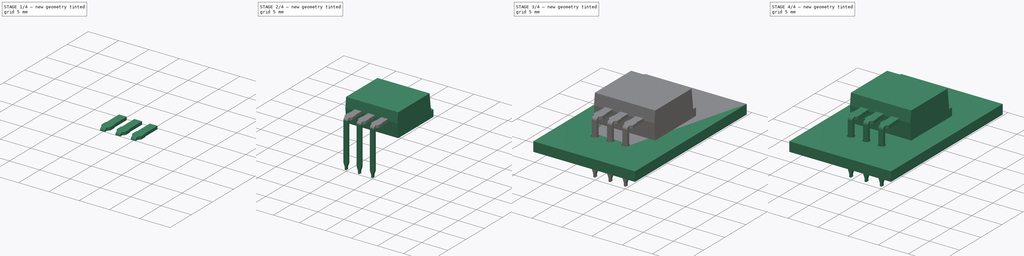
[diagram: build sequence overview — one tinted view per stage of 4, left to right]
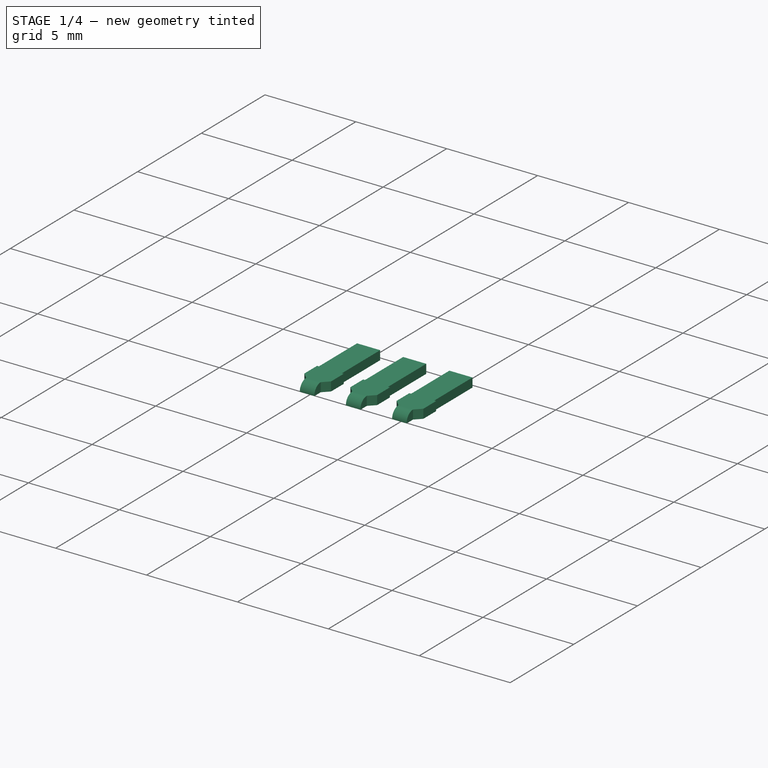
[diagram: stage 1 of 4 — iso view after this stage's code; geometry added in this stage tinted green]
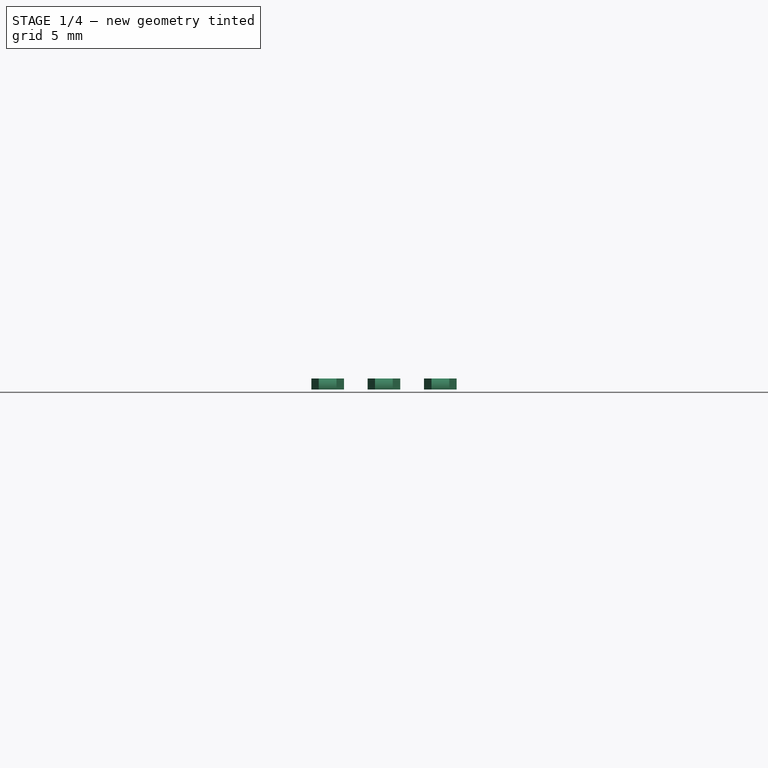
[diagram: stage 1 of 4 — front view after this stage's code; geometry added in this stage tinted green]
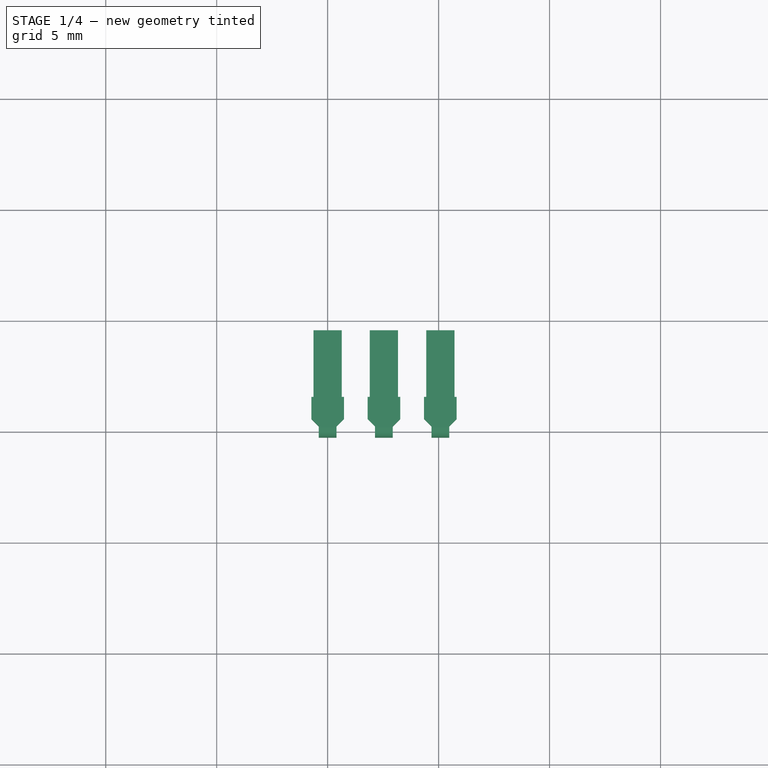
[diagram: stage 1 of 4 — top view after this stage's code; geometry added in this stage tinted green]
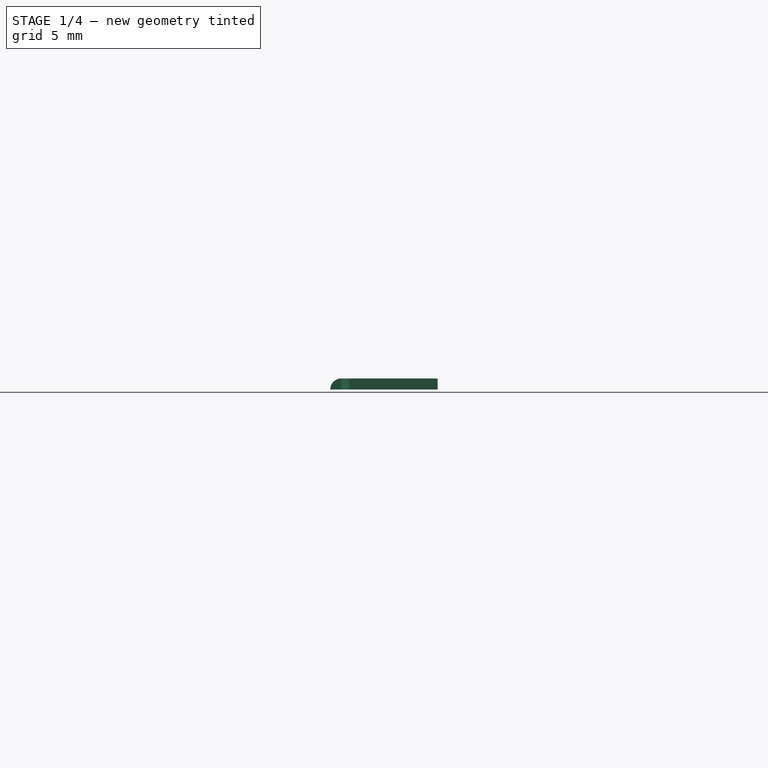
[diagram: stage 1 of 4 — right view after this stage's code; geometry added in this stage tinted green]
FCSTD DOCUMENT  (FreeCAD 0.16R6712 (Git))
Label: TO-262-3-1EP_Horizontal_TabDown
License: All rights reserved
LicenseURL: http://en.wikipedia.org/wiki/All_rights_reserved
objects: Part::FeaturePython×7, Sketcher::SketchObject×4, PartDesign::Pad×4, App::DocumentObjectGroup×1, PartDesign::Fillet×1, Part::MultiFuse×1
note: 21 computed .brp shape members not serialized (recipe doc carries the construction recipe); baked Part::Feature solids carry a one-line shape summary decoded from their .brp

FEATURE [Sketcher::SketchObject] Sketch
  Placement = pos=(0,0.25,2.65) rot=(0,0,1;0rad)
  sketch-geometry (55):
    g0: LineSegment StartX=-0.735 StartY=1.335 StartZ=0 EndX=-0.635 EndY=1.335 EndZ=0
    g1: LineSegment StartX=0.735 StartY=1.335 StartZ=0 EndX=0.735 EndY=0.335 EndZ=0
    g2: LineSegment StartX=-0.735 StartY=0.335 StartZ=0 EndX=-0.735 EndY=1.335 EndZ=0
    g3: LineSegment StartX=0.4 StartY=0 StartZ=0 EndX=0.4 EndY=-0.5 EndZ=0
    g4: LineSegment StartX=-0.4 StartY=-0.5 StartZ=0 EndX=-0.4 EndY=0 EndZ=0
    g5: LineSegment StartX=0.635 StartY=1.335 StartZ=0 EndX=0.635 EndY=4.335 EndZ=0
    g6: LineSegment StartX=0.635 StartY=4.335 StartZ=0 EndX=-0.635 EndY=4.335 EndZ=0
    g7: LineSegment StartX=-0.635 StartY=4.335 StartZ=0 EndX=-0.635 EndY=1.335 EndZ=0
    g8: LineSegment StartX=0.635 StartY=1.335 StartZ=0 EndX=0.735 EndY=1.335 EndZ=0
    g9: LineSegment [constr] StartX=0 StartY=-0.5 StartZ=0 EndX=0 EndY=4.335 EndZ=0
    g10: LineSegment [constr] StartX=-0.4 StartY=0 StartZ=0 EndX=0.4 EndY=0 EndZ=0
    g11: LineSegment [constr] StartX=-0.635 StartY=1.335 StartZ=0 EndX=0.635 EndY=1.335 EndZ=0
    g12: GeomPoint [constr] X=0 Y=1.335 Z=0
    g13: GeomPoint [constr] X=0 Y=0 Z=0
    g14: LineSegment StartX=-0.735 StartY=0.335 StartZ=0 EndX=-0.4 EndY=0 EndZ=0
    g15: LineSegment StartX=0.4 StartY=0 StartZ=0 EndX=0.735 EndY=0.335 EndZ=0
    g16: LineSegment [constr] StartX=0.735 StartY=0.335 StartZ=0 EndX=-0.735 EndY=0.335 EndZ=0
    g17: LineSegment StartX=1.79972 StartY=1.335 StartZ=0 EndX=1.89972 EndY=1.335 EndZ=0
    g18: LineSegment StartX=3.26972 StartY=1.335 StartZ=0 EndX=3.26972 EndY=0.335 EndZ=0
    g19: LineSegment StartX=1.79972 StartY=0.335 StartZ=0 EndX=1.79972 EndY=1.335 EndZ=0
    g20: LineSegment StartX=2.93472 StartY=0 StartZ=0 EndX=2.93472 EndY=-0.5 EndZ=0
    g21: LineSegment StartX=2.13472 StartY=-0.5 StartZ=0 EndX=2.13472 EndY=0 EndZ=0
    g22: LineSegment StartX=3.16972 StartY=1.335 StartZ=0 EndX=3.16972 EndY=4.335 EndZ=0
    g23: LineSegment StartX=3.16972 StartY=4.335 StartZ=0 EndX=1.89972 EndY=4.335 EndZ=0
    g24: LineSegment StartX=1.89972 StartY=4.335 StartZ=0 EndX=1.89972 EndY=1.335 EndZ=0
    g25: LineSegment StartX=3.16972 StartY=1.335 StartZ=0 EndX=3.26972 EndY=1.335 EndZ=0
    g26: LineSegment [constr] StartX=2.53472 StartY=-0.5 StartZ=0 EndX=2.53472 EndY=4.335 EndZ=0
    g27: LineSegment [constr] StartX=2.13472 StartY=0 StartZ=0 EndX=2.93472 EndY=0 EndZ=0
    g28: LineSegment [constr] StartX=1.89972 StartY=1.335 StartZ=0 EndX=3.16972 EndY=1.335 EndZ=0
    g29: GeomPoint [constr] X=2.53472 Y=1.335 Z=0
    g30: GeomPoint [constr] X=2.53472 Y=0 Z=0
    g31: LineSegment StartX=1.79972 StartY=0.335 StartZ=0 EndX=2.13472 EndY=0 EndZ=0
    g32: LineSegment StartX=2.93472 StartY=0 StartZ=0 EndX=3.26972 EndY=0.335 EndZ=0
    g33: LineSegment [constr] StartX=3.26972 StartY=0.335 StartZ=0 EndX=1.79972 EndY=0.335 EndZ=0
    g34: LineSegment StartX=4.34317 StartY=1.335 StartZ=0 EndX=4.44317 EndY=1.335 EndZ=0
    g35: LineSegment StartX=5.81317 StartY=1.335 StartZ=0 EndX=5.81317 EndY=0.335 EndZ=0
    g36: LineSegment StartX=4.34317 StartY=0.335 StartZ=0 EndX=4.34317 EndY=1.335 EndZ=0
    g37: LineSegment StartX=5.47817 StartY=0 StartZ=0 EndX=5.47817 EndY=-0.5 EndZ=0
    g38: LineSegment StartX=4.67817 StartY=-0.5 StartZ=0 EndX=4.67817 EndY=0 EndZ=0
    g39: LineSegment StartX=5.71317 StartY=1.335 StartZ=0 EndX=5.71317 EndY=4.335 EndZ=0
    g40: LineSegment StartX=5.71317 StartY=4.335 StartZ=0 EndX=4.44317 EndY=4.335 EndZ=0
    g41: LineSegment StartX=4.44317 StartY=4.335 StartZ=0 EndX=4.44317 EndY=1.335 EndZ=0
    g42: LineSegment StartX=5.71317 StartY=1.335 StartZ=0 EndX=5.81317 EndY=1.335 EndZ=0
    g43: LineSegment [constr] StartX=5.07817 StartY=-0.5 StartZ=0 EndX=5.07817 EndY=4.335 EndZ=0
    g44: LineSegment [constr] StartX=4.67817 StartY=0 StartZ=0 EndX=5.47817 EndY=0 EndZ=0
    g45: LineSegment [constr] StartX=4.44317 StartY=1.335 StartZ=0 EndX=5.71317 EndY=1.335 EndZ=0
    g46: GeomPoint [constr] X=5.07817 Y=1.335 Z=0
    g47: GeomPoint [constr] X=5.07817 Y=0 Z=0
    g48: LineSegment StartX=4.34317 StartY=0.335 StartZ=0 EndX=4.67817 EndY=0 EndZ=0
    g49: LineSegment StartX=5.47817 StartY=0 StartZ=0 EndX=5.81317 EndY=0.335 EndZ=0
    g50: LineSegment [constr] StartX=5.81317 StartY=0.335 StartZ=0 EndX=4.34317 EndY=0.335 EndZ=0
    g51: LineSegment StartX=-0.4 StartY=-0.5 StartZ=0 EndX=0.4 EndY=-0.5 EndZ=0
    g52: LineSegment StartX=2.13472 StartY=-0.5 StartZ=0 EndX=2.93472 EndY=-0.5 EndZ=0
    g53: LineSegment StartX=4.67817 StartY=-0.5 StartZ=0 EndX=5.47817 EndY=-0.5 EndZ=0
    g54: LineSegment [constr] StartX=0 StartY=4.335 StartZ=0 EndX=5.07817 EndY=4.335 EndZ=0
  constraints (146):
    c: Coincident(g8,g1)
    c: Coincident(g2,g0)
    c: Horizontal(g0)
    c: Vertical(g1)
    c: Vertical(g2)
    c: Vertical(g3)
    c: Vertical(g4)
    c: Coincident(g5,g6)
    c: Coincident(g6,g7)
    c: Horizontal(g6)
    c: Vertical(g5)
    c: Vertical(g7)
    c: PointOnObject(g7,g0)
    c: PointOnObject(g0,g7)
    c: Tangent(g0,g8)
    c: PointOnObject(g9,g6)
    c: Symmetric(g6,g6,g9)
    c: Coincident(g10,g4)
    c: Coincident(g11,g0)
    c: Coincident(g11,g8)
    c: Coincident(g5,g8)
    c: PointOnObject(g12,g9)
    c: PointOnObject(g13,g9)
    c: Symmetric(g10,g10,g13)
    c: Symmetric(g11,g11,g12)
    c: DistanceX(g0,g1) = 1.47
    c: Equal(g0,g8)
    c: DistanceY(g2,g0) = 1
    c: DistanceY(g7,g7) = 3
    c: Coincident(g13,g-1)
    c: DistanceX(g6,g6) = 1.27
    c: Coincident(g14,g2)
    c: Coincident(g14,g4)
    c: Coincident(g15,g3)
    c: Coincident(g15,g1)
    c: Coincident(g16,g1)
    c: Coincident(g16,g2)
    c: Horizontal(g16)
    c: Angle(g14,g4) = 2.35619
    c: Coincident(g25,g18)
    c: Coincident(g19,g17)
    c: Horizontal(g17)
    c: Vertical(g18)
    c: Vertical(g19)
    c: Vertical(g20)
    c: Vertical(g21)
    c: Coincident(g22,g23)
    c: Coincident(g23,g24)
    c: Horizontal(g23)
    c: Vertical(g22)
    c: Vertical(g24)
    c: PointOnObject(g24,g17)
    c: PointOnObject(g17,g24)
    c: Tangent(g17,g25)
    c: PointOnObject(g26,g23)
    c: Symmetric(g23,g23,g26)
    c: Coincident(g27,g21)
    c: Coincident(g28,g17)
    c: Coincident(g28,g25)
    c: Coincident(g22,g25)
    c: PointOnObject(g29,g26)
    c: PointOnObject(g30,g26)
    c: Symmetric(g27,g27,g30)
    c: Symmetric(g28,g28,g29)
    c: DistanceX(g17,g18) = 1.47
    c: Equal(g17,g25)
    c: DistanceY(g19,g17) = 1
    c: Equal(g7,g24) = 3
    c: Equal(g6,g23) = 1.27
    c: Coincident(g31,g19)
    c: Coincident(g31,g21)
    c: Coincident(g32,g20)
    c: Coincident(g32,g18)
    c: Coincident(g33,g18)
    c: Coincident(g33,g19)
    c: Horizontal(g33)
    c: Angle(g31,g21) = 2.35619
    c: Coincident(g42,g35)
    c: Coincident(g36,g34)
    c: Horizontal(g34)
    c: Vertical(g35)
    c: Vertical(g36)
    c: Vertical(g37)
    c: Vertical(g38)
    c: Coincident(g39,g40)
    c: Coincident(g40,g41)
    c: Horizontal(g40)
    c: Vertical(g39)
    c: Vertical(g41)
    c: PointOnObject(g41,g34)
    c: PointOnObject(g34,g41)
    c: Tangent(g34,g42)
    c: PointOnObject(g43,g40)
    c: Symmetric(g40,g40,g43)
    c: Coincident(g44,g38)
    c: Coincident(g45,g34)
    c: Coincident(g45,g42)
    c: Coincident(g39,g42)
    c: PointOnObject(g46,g43)
    c: PointOnObject(g47,g43)
    c: Symmetric(g44,g44,g47)
    c: Symmetric(g45,g45,g46)
    c: DistanceX(g34,g35) = 1.47
    c: Equal(g34,g42)
    c: DistanceY(g36,g34) = 1
    c: Coincident(g48,g36)
    c: Coincident(g48,g38)
    c: Coincident(g49,g37)
    c: Coincident(g49,g35)
    c: Coincident(g50,g35)
    c: Coincident(g50,g36)
    c: Horizontal(g50)
    c: Angle(g48,g38) = 2.35619
    c: Horizontal(g44)
    c: Horizontal(g27)
    c: PointOnObject(g38,g-1)
    c: PointOnObject(g21,g-1)
    c: Coincident(g10,g3)
    c: Horizontal(g10)
    c: Coincident(g20,g27)
    c: Coincident(g37,g44)
    c: Coincident(g51,g4)
    c: Coincident(g51,g3)
    c: Horizontal(g51)
    c: Coincident(g52,g21)
    c: Coincident(g52,g20)
    c: Coincident(g53,g38)
    c: Coincident(g53,g37)
    c: Equal(g37,g20)
    c: Equal(g20,g3)
    c: Equal(g3,g4)
    c: Equal(g4,g21)
    c: Equal(g21,g38)
    c: DistanceY(g37,g37) = 0.5
    c: Equal(g52,g51)
    c: Equal(g51,g53)
    c: DistanceX(g51,g51) = 0.8
    c: Symmetric(g51,g51,g9)
    c: Symmetric(g52,g52,g26)
    c: Symmetric(g53,g53,g43)
    c: Equal(g40,g23)
    c: Equal(g23,g6)
    c: Coincident(g54,g9)
    c: Coincident(g54,g43)
    c: Horizontal(g54)
    c: PointOnObject(g26,g54)
FEATURE [PartDesign::Pad] Pad
  Length = 0.5
  Length2 = 100
  Midplane = true
  Placement = pos=(0,0.25,2.65) rot=(0,0,1;0rad)
  Reversed = true
  Sketch = -> Sketch
  Type = 0
FEATURE [PartDesign::Fillet] Fillet
  Base = -> Pad [Edge67,Edge103,Edge31]
  Placement = pos=(0,0.25,2.65) rot=(0,0,1;0rad)
  Radius = 0.49
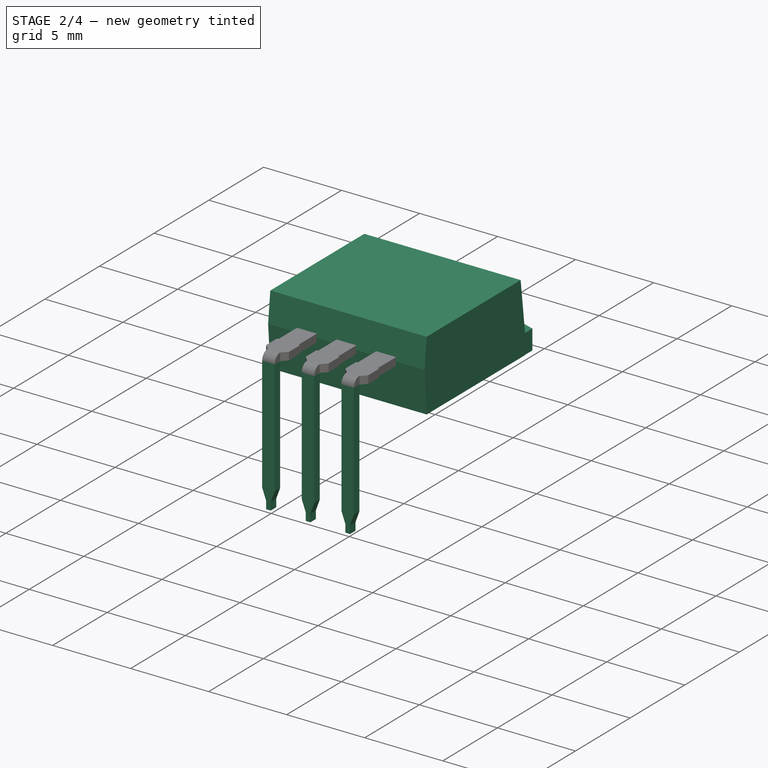
[diagram: stage 2 of 4 — iso view after this stage's code; geometry added in this stage tinted green]
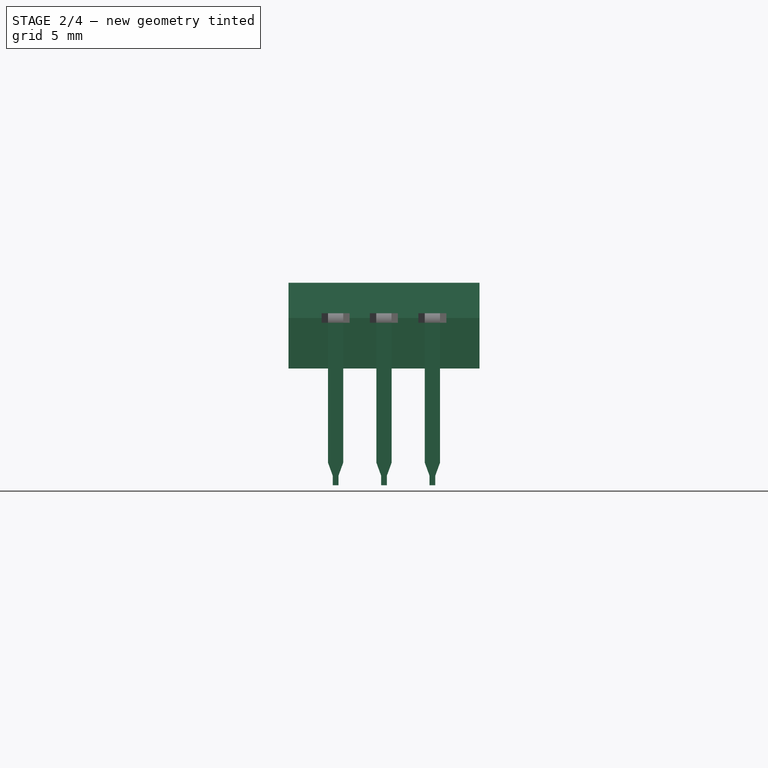
[diagram: stage 2 of 4 — front view after this stage's code; geometry added in this stage tinted green]
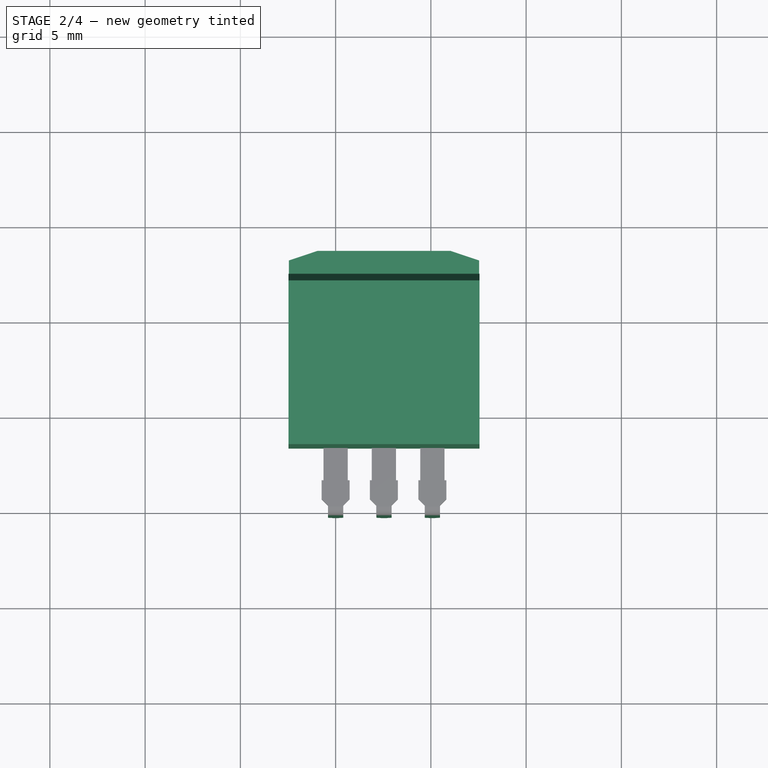
[diagram: stage 2 of 4 — top view after this stage's code; geometry added in this stage tinted green]
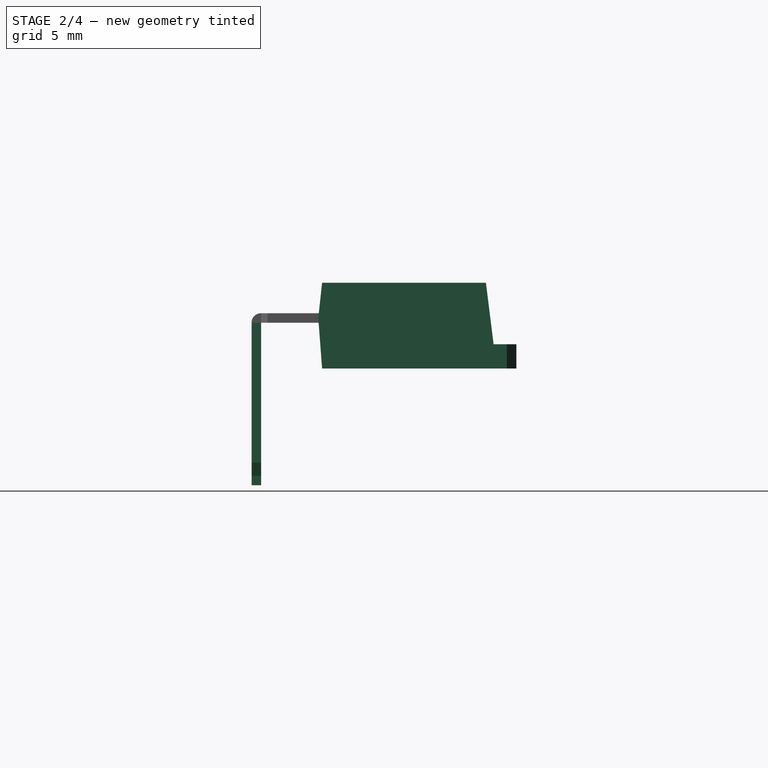
[diagram: stage 2 of 4 — right view after this stage's code; geometry added in this stage tinted green]
FEATURE [Sketcher::SketchObject] Sketch001
  Placement = pos=(2.54,0.25,2.65) rot=(0,1,0;1.5708rad)
  sketch-geometry (7):
    g0: LineSegment StartX=0 StartY=3 StartZ=0 EndX=-1.85 EndY=3.2 EndZ=0
    g1: LineSegment StartX=-1.85 StartY=3.2 StartZ=0 EndX=-1.85 EndY=11.8 EndZ=0
    g2: LineSegment StartX=-1.85 StartY=11.8 StartZ=0 EndX=1.35 EndY=12.2 EndZ=0
    g3: LineSegment StartX=1.35 StartY=12.2 StartZ=0 EndX=2.65 EndY=12.2 EndZ=0
    g4: LineSegment StartX=2.65 StartY=12.2 StartZ=0 EndX=2.65 EndY=3.2 EndZ=0
    g5: LineSegment StartX=2.65 StartY=3.2 StartZ=0 EndX=0 EndY=3 EndZ=0
    g6: LineSegment [constr] StartX=-1.85 StartY=3.2 StartZ=0 EndX=2.65 EndY=3.2 EndZ=0
  constraints (20):
    c: PointOnObject(g0,g-2)
    c: Coincident(g1,g0)
    c: Vertical(g1)
    c: Coincident(g2,g1)
    c: Horizontal(g3)
    c: Coincident(g4,g3)
    c: Vertical(g4)
    c: Coincident(g5,g4)
    c: Coincident(g5,g0)
    c: Coincident(g6,g0)
    c: Coincident(g6,g4)
    c: Horizontal(g6)
    c: DistanceX(g0,g4) = 2.65
    c: DistanceX(g1,g3) = 4.5
    c: DistanceY(g0,g4) = 0.2
    c: DistanceY(g0,g3) = 9.2
    c: Coincident(g2,g3)
    c: DistanceY(g-1,g0) = 3
    c: DistanceX(g3,g3) = 1.3
    c: DistanceY(g1,g2) = 0.4
FEATURE [PartDesign::Pad] Pad001
  Length = 10.02
  Length2 = 100
  Midplane = true
  Placement = pos=(2.54,0.25,2.65) rot=(0,1,0;1.5708rad)
  Sketch = -> Sketch001
  Type = 0
FEATURE [Sketcher::SketchObject] Sketch002
  Placement = pos=(0,0.25,-0.001) rot=(0,0,1;0rad)
  sketch-geometry (7):
    g0: LineSegment StartX=7.53 StartY=12.9 StartZ=0 EndX=7.53 EndY=5 EndZ=0
    g1: LineSegment StartX=7.53 StartY=5 StartZ=0 EndX=-2.45 EndY=5 EndZ=0
    g2: LineSegment StartX=-2.45 StartY=5 StartZ=0 EndX=-2.45 EndY=12.9 EndZ=0
    g3: LineSegment StartX=-2.45 StartY=12.9 StartZ=0 EndX=-0.96 EndY=13.4 EndZ=0
    g4: LineSegment StartX=-0.96 StartY=13.4 StartZ=0 EndX=6.04 EndY=13.4 EndZ=0
    g5: LineSegment StartX=6.04 StartY=13.4 StartZ=0 EndX=7.53 EndY=12.9 EndZ=0
    g6: GeomPoint [constr] X=2.54 Y=13.4 Z=0
  constraints (20):
    c: Coincident(g0,g1)
    c: Coincident(g1,g2)
    c: Horizontal(g1)
    c: Vertical(g0)
    c: Vertical(g2)
    c: DistanceX(g2,g0) = 9.98
    c: DistanceY(g0,g0) = 7.9
    c: Coincident(g3,g2)
    c: Coincident(g4,g3)
    c: Horizontal(g4)
    c: Coincident(g5,g4)
    c: Coincident(g5,g0)
    c: Equal(g5,g3)
    c: DistanceY(g-1,g3) = 13.4
    c: DistanceX(g4,g4) = 7
    c: Equal(g2,g0)
    c: DistanceY(g2,g3) = 0.5
    c: PointOnObject(g6,g4)
    c: Symmetric(g4,g4,g6)
    c: DistanceX(g-1,g6) = 2.54
FEATURE [PartDesign::Pad] Pad002
  Length = 1.27
  Length2 = 100
  Placement = pos=(0,0.25,-0.001) rot=(0,0,1;0rad)
  Sketch = -> Sketch002
  Type = 0
FEATURE [App::DocumentObjectGroup] TO_262_3_1EP_Horizontal_TabDown_fp
  Group = -> [FCrtYd_lines,FFab_lines,Filk_lines,TopPads,BotPads,THPs,newPCB]
FEATURE [Sketcher::SketchObject] Sketch003
  Placement = pos=(0,0,0) rot=(1,0,0;1.5708rad)
  sketch-geometry (39):
    g0: LineSegment StartX=-0.4 StartY=-4.9448 StartZ=0 EndX=-0.4 EndY=2.4 EndZ=0
    g1: LineSegment StartX=0.15 StartY=-5.63167 StartZ=0 EndX=0.15 EndY=-6.13167 EndZ=0
    g2: LineSegment StartX=0.15 StartY=-6.13167 StartZ=0 EndX=-0.15 EndY=-6.13167 EndZ=0
    g3: LineSegment StartX=-0.15 StartY=-6.13167 StartZ=0 EndX=-0.15 EndY=-5.63167 EndZ=0
    g4: LineSegment StartX=-0.4 StartY=-4.9448 StartZ=0 EndX=-0.15 EndY=-5.63167 EndZ=0
    g5: LineSegment StartX=0.4 StartY=-4.9448 StartZ=0 EndX=0.15 EndY=-5.63167 EndZ=0
    g6: LineSegment [constr] StartX=0 StartY=-6.13167 StartZ=0 EndX=0 EndY=2.4 EndZ=0
    g7: LineSegment [constr] StartX=-0.4 StartY=-4.9448 StartZ=0 EndX=0.4 EndY=-4.9448 EndZ=0
    g8: LineSegment [constr] StartX=-0.15 StartY=-5.63167 StartZ=0 EndX=0.15 EndY=-5.63167 EndZ=0
    g9: GeomPoint [constr] X=0 Y=-4.9448 Z=0
    g10: LineSegment [constr] StartX=0 StartY=-6.13167 StartZ=0 EndX=2.54 EndY=-6.13167 EndZ=0
    g11: LineSegment StartX=2.94 StartY=2.4 StartZ=0 EndX=2.94 EndY=-4.9448 EndZ=0
    g12: LineSegment StartX=2.14 StartY=-4.9448 StartZ=0 EndX=2.14 EndY=2.4 EndZ=0
    g13: LineSegment StartX=2.69 StartY=-5.63167 StartZ=0 EndX=2.69 EndY=-6.13167 EndZ=0
    g14: LineSegment StartX=2.69 StartY=-6.13167 StartZ=0 EndX=2.39 EndY=-6.13167 EndZ=0
    g15: LineSegment StartX=2.39 StartY=-6.13167 StartZ=0 EndX=2.39 EndY=-5.63167 EndZ=0
    g16: LineSegment StartX=2.14 StartY=-4.9448 StartZ=0 EndX=2.39 EndY=-5.63167 EndZ=0
    g17: LineSegment StartX=2.94 StartY=-4.9448 StartZ=0 EndX=2.69 EndY=-5.63167 EndZ=0
    g18: LineSegment [constr] StartX=2.54 StartY=-6.13167 StartZ=0 EndX=2.54 EndY=2.4 EndZ=0
    g19: LineSegment [constr] StartX=2.14 StartY=-4.9448 StartZ=0 EndX=2.94 EndY=-4.9448 EndZ=0
    g20: LineSegment [constr] StartX=2.39 StartY=-5.63167 StartZ=0 EndX=2.69 EndY=-5.63167 EndZ=0
    g21: GeomPoint [constr] X=2.54 Y=-4.9448 Z=0
    g22: LineSegment StartX=5.48 StartY=2.4 StartZ=0 EndX=5.48 EndY=-4.9448 EndZ=0
    g23: LineSegment StartX=4.68 StartY=-4.9448 StartZ=0 EndX=4.68 EndY=2.4 EndZ=0
    g24: LineSegment StartX=5.23 StartY=-5.63167 StartZ=0 EndX=5.23 EndY=-6.13167 EndZ=0
    g25: LineSegment StartX=5.23 StartY=-6.13167 StartZ=0 EndX=4.93 EndY=-6.13167 EndZ=0
    g26: LineSegment StartX=4.93 StartY=-6.13167 StartZ=0 EndX=4.93 EndY=-5.63167 EndZ=0
    g27: LineSegment StartX=4.68 StartY=-4.9448 StartZ=0 EndX=4.93 EndY=-5.63167 EndZ=0
    g28: LineSegment StartX=5.48 StartY=-4.9448 StartZ=0 EndX=5.23 EndY=-5.63167 EndZ=0
    g29: LineSegment [constr] StartX=5.08 StartY=-6.13167 StartZ=0 EndX=5.08 EndY=2.4 EndZ=0
    g30: LineSegment [constr] StartX=4.68 StartY=-4.9448 StartZ=0 EndX=5.48 EndY=-4.9448 EndZ=0
    g31: LineSegment [constr] StartX=4.93 StartY=-5.63167 StartZ=0 EndX=5.23 EndY=-5.63167 EndZ=0
    g32: GeomPoint [constr] X=5.08 Y=-4.9448 Z=0
    g33: LineSegment [constr] StartX=5.08 StartY=-6.13167 StartZ=0 EndX=2.54 EndY=-6.13167 EndZ=0
    g34: LineSegment StartX=0.4 StartY=-4.9448 StartZ=0 EndX=0.4 EndY=2.4 EndZ=0
    g35: LineSegment StartX=-0.4 StartY=2.4 StartZ=0 EndX=0.4 EndY=2.4 EndZ=0
    g36: LineSegment StartX=2.14 StartY=2.4 StartZ=0 EndX=2.94 EndY=2.4 EndZ=0
    g37: LineSegment StartX=4.68 StartY=2.4 StartZ=0 EndX=5.48 EndY=2.4 EndZ=0
    g38: LineSegment [constr] StartX=0 StartY=2.4 StartZ=0 EndX=5.08 EndY=2.4 EndZ=0
  constraints (105):
    c: Vertical(g0)
    c: Coincident(g1,g2)
    c: Coincident(g2,g3)
    c: Horizontal(g2)
    c: Vertical(g1)
    c: Vertical(g3)
    c: Coincident(g0,g4)
    c: PointOnObject(g6,g2)
    c: Symmetric(g2,g2,g6)
    c: Coincident(g3,g4)
    c: Coincident(g1,g5)
    c: Coincident(g7,g0)
    c: Horizontal(g7)
    c: Coincident(g8,g3)
    c: Horizontal(g8)
    c: PointOnObject(g9,g6)
    c: Coincident(g1,g8)
    c: Symmetric(g7,g7,g9)
    c: DistanceX(g7,g7) = 0.8
    c: DistanceY(g3,g3) = 0.5
    c: DistanceX(g2,g2) = 0.3
    c: Coincident(g10,g6)
    c: Horizontal(g10)
    c: DistanceX(g10,g10) = 2.54
    c: Vertical(g11)
    c: Vertical(g12)
    c: Coincident(g13,g14)
    c: Coincident(g14,g15)
    c: Horizontal(g14)
    c: Vertical(g13)
    c: Vertical(g15)
    c: Coincident(g17,g11)
    c: Coincident(g12,g16)
    c: PointOnObject(g18,g14)
    c: Symmetric(g14,g14,g18)
    c: Coincident(g15,g16)
    c: Coincident(g13,g17)
    c: Coincident(g19,g12)
    c: Horizontal(g19)
    c: Coincident(g20,g15)
    c: Horizontal(g20)
    c: PointOnObject(g21,g18)
    c: Coincident(g13,g20)
    c: Symmetric(g19,g19,g21)
    c: Equal(g7,g19) = 0.8
    c: Equal(g3,g15) = 0.5
    c: Equal(g2,g14) = 0.3
    c: Angle(g11,g17) = 2.79253
    c: Coincident(g19,g11)
    c: Coincident(g18,g10)
    c: Vertical(g22)
    c: Vertical(g23)
    c: Coincident(g24,g25)
    c: Coincident(g25,g26)
    c: Horizontal(g25)
    c: Vertical(g24)
    c: Vertical(g26)
    c: Coincident(g28,g22)
    c: Coincident(g23,g27)
    c: PointOnObject(g29,g25)
    c: Symmetric(g25,g25,g29)
    c: Coincident(g26,g27)
    c: Coincident(g24,g28)
    c: Coincident(g30,g23)
    c: Horizontal(g30)
    c: Coincident(g31,g26)
    c: Horizontal(g31)
    c: PointOnObject(g32,g29)
    c: Coincident(g24,g31)
    c: Symmetric(g30,g30,g32)
    c: Angle(g22,g28) = 2.79253
    c: Coincident(g30,g22)
    c: Coincident(g33,g29)
    c: Coincident(g33,g10)
    c: Horizontal(g33)
    c: Equal(g33,g10)
    c: Equal(g31,g20)
    c: Equal(g20,g8)
    c: Equal(g26,g15)
    c: Equal(g27,g16)
    c: Vertical(g6)
    c: Vertical(g18)
    c: Vertical(g29)
    c: Coincident(g34,g5)
    c: Vertical(g34)
    c: Coincident(g35,g0)
    c: Coincident(g35,g34)
    c: Horizontal(g35)
    c: Symmetric(g35,g35,g6)
    c: Coincident(g5,g7)
    c: Angle(g34,g5) = 2.79253
    c: PointOnObject(g6,g-2)
    c: Horizontal(g36)
    c: Horizontal(g37)
    c: Coincident(g22,g37)
    c: Coincident(g23,g37)
    c: Coincident(g11,g36)
    c: Coincident(g12,g36)
    c: Symmetric(g36,g36,g18)
    c: Symmetric(g37,g37,g29)
    c: DistanceY(g-1,g6) = 2.4
    c: Coincident(g38,g6)
    c: Horizontal(g38)
    c: Coincident(g38,g29)
    c: PointOnObject(g18,g38)
FEATURE [PartDesign::Pad] Pad003
  Length = 0.5
  Length2 = 100
  Midplane = true
  Placement = pos=(0,0,0) rot=(1,0,0;1.5708rad)
  Reversed = true
  Sketch = -> Sketch003
  Type = 0
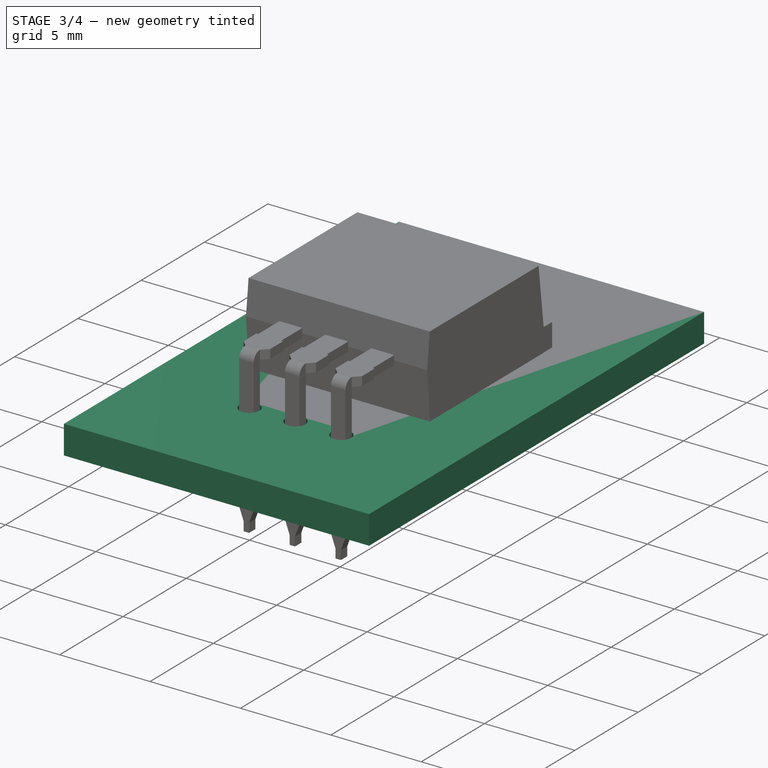
[diagram: stage 3 of 4 — iso view after this stage's code; geometry added in this stage tinted green]
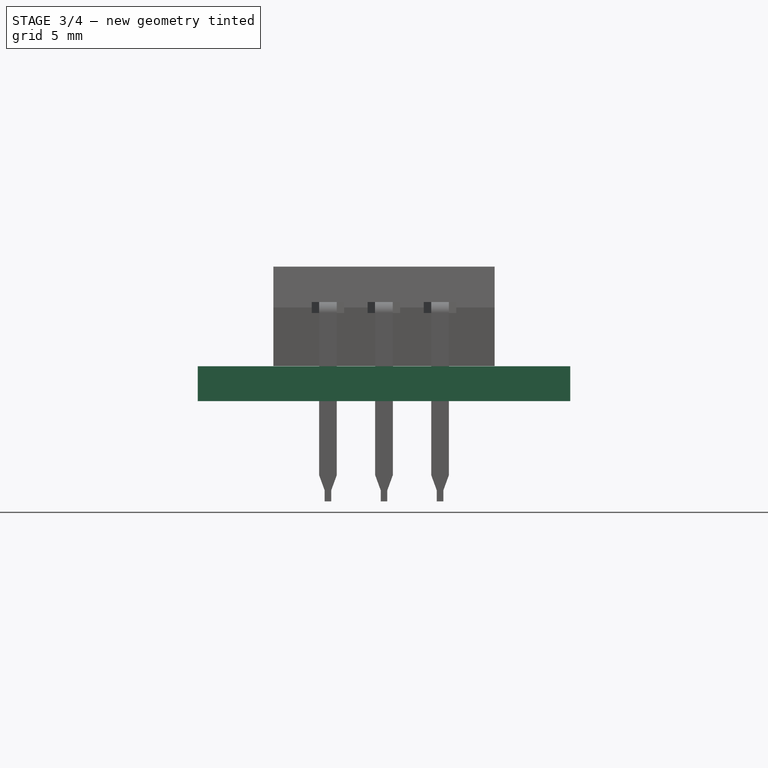
[diagram: stage 3 of 4 — front view after this stage's code; geometry added in this stage tinted green]
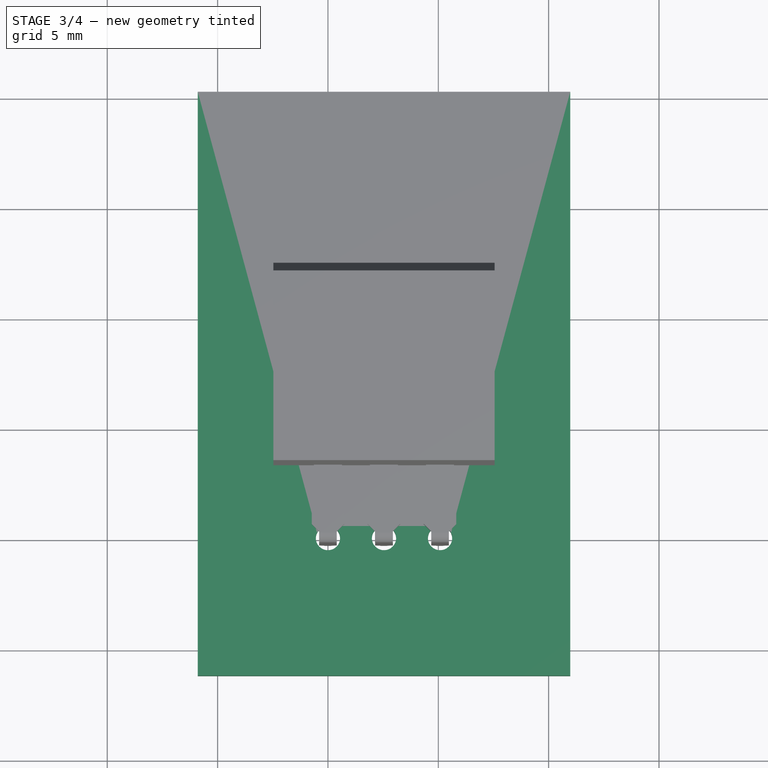
[diagram: stage 3 of 4 — top view after this stage's code; geometry added in this stage tinted green]
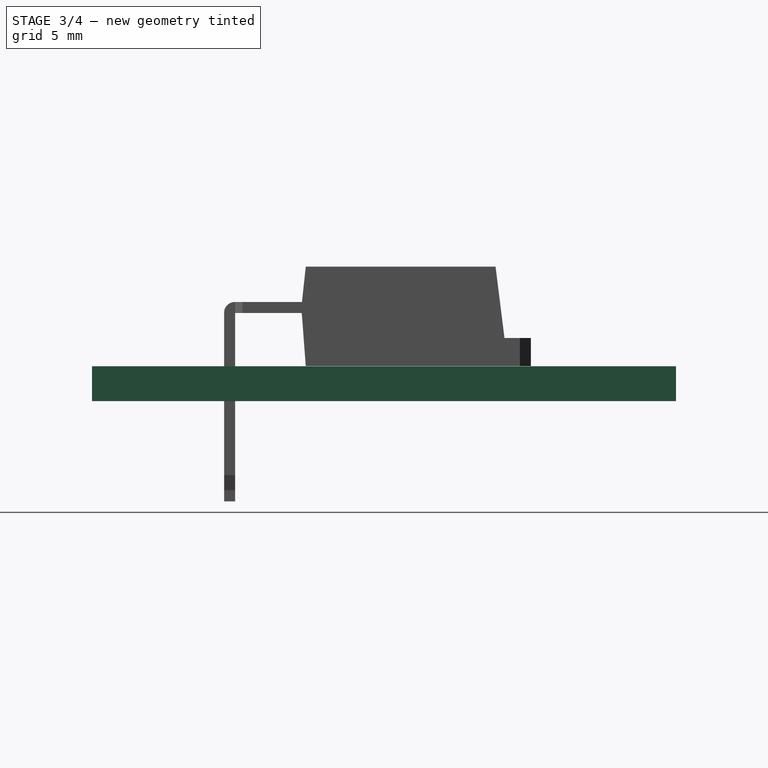
[diagram: stage 3 of 4 — right view after this stage's code; geometry added in this stage tinted green]
FEATURE [Part::FeaturePython] THPs  label="PTHs"  # a2plus imported part (geometry in sourceFile) (typed FeaturePython)
  fixedPosition = true
FEATURE [Part::FeaturePython] newPCB  label="Pcb"  # a2plus imported part (geometry in sourceFile) (typed FeaturePython)
  fixedPosition = true
FEATURE [Part::MultiFuse] Pad001_mp_cp  label="TO-262-3-1EP_Horizontal_TabDown"
  Shapes = -> [Pad001,Fillet,Pad003,Pad002]
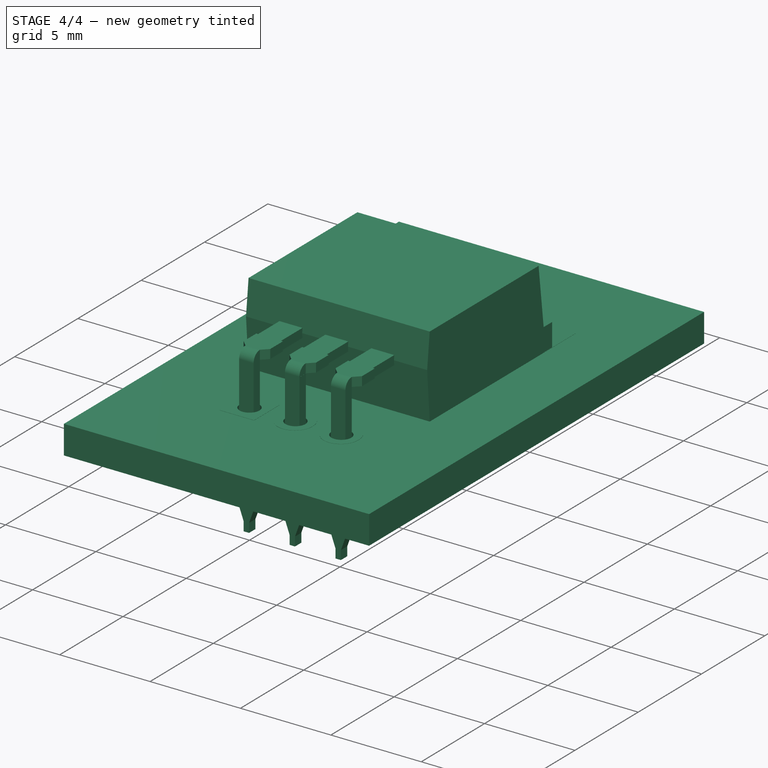
[diagram: stage 4 of 4 — iso view after this stage's code; geometry added in this stage tinted green]
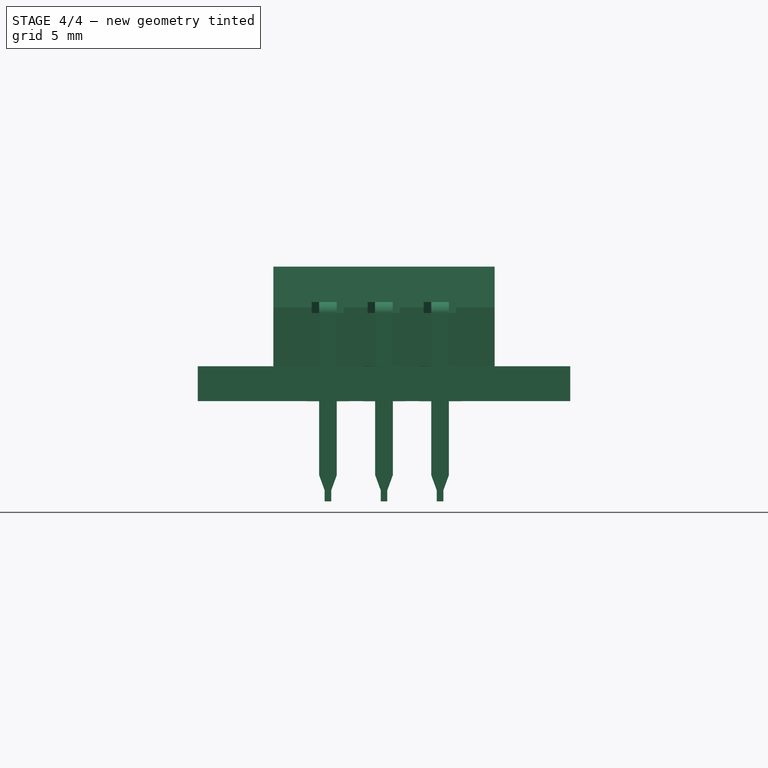
[diagram: stage 4 of 4 — front view after this stage's code; geometry added in this stage tinted green]
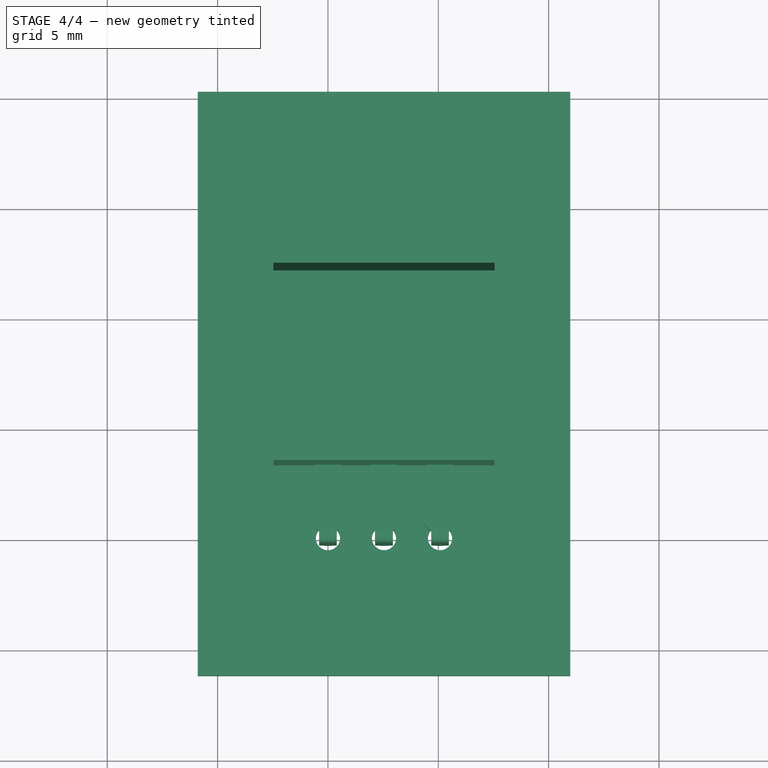
[diagram: stage 4 of 4 — top view after this stage's code; geometry added in this stage tinted green]
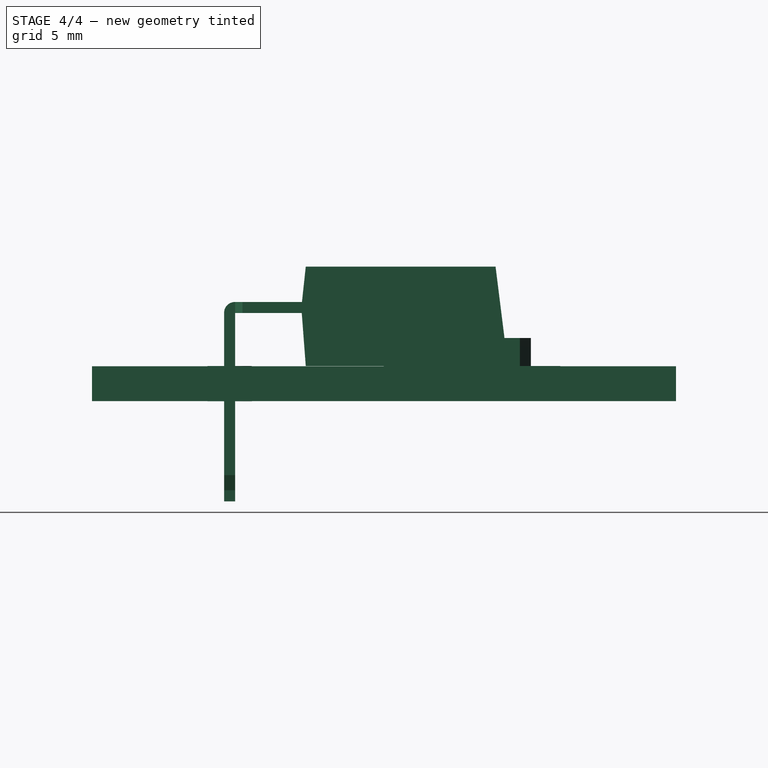
[diagram: stage 4 of 4 — right view after this stage's code; geometry added in this stage tinted green]
FEATURE [Part::FeaturePython] FCrtYd_lines  label="FCrtYd"  # a2plus imported part (geometry in sourceFile) (typed FeaturePython)
  fixedPosition = true
FEATURE [Part::FeaturePython] FFab_lines  label="FFab"  # a2plus imported part (geometry in sourceFile) (typed FeaturePython)
  fixedPosition = true
FEATURE [Part::FeaturePython] Filk_lines  label="FrontSilk"  # a2plus imported part (geometry in sourceFile) (typed FeaturePython)
  fixedPosition = true
FEATURE [Part::FeaturePython] TopPads  # a2plus imported part (geometry in sourceFile) (typed FeaturePython)
  fixedPosition = true
FEATURE [Part::FeaturePython] BotPads  # a2plus imported part (geometry in sourceFile) (typed FeaturePython)
  fixedPosition = true
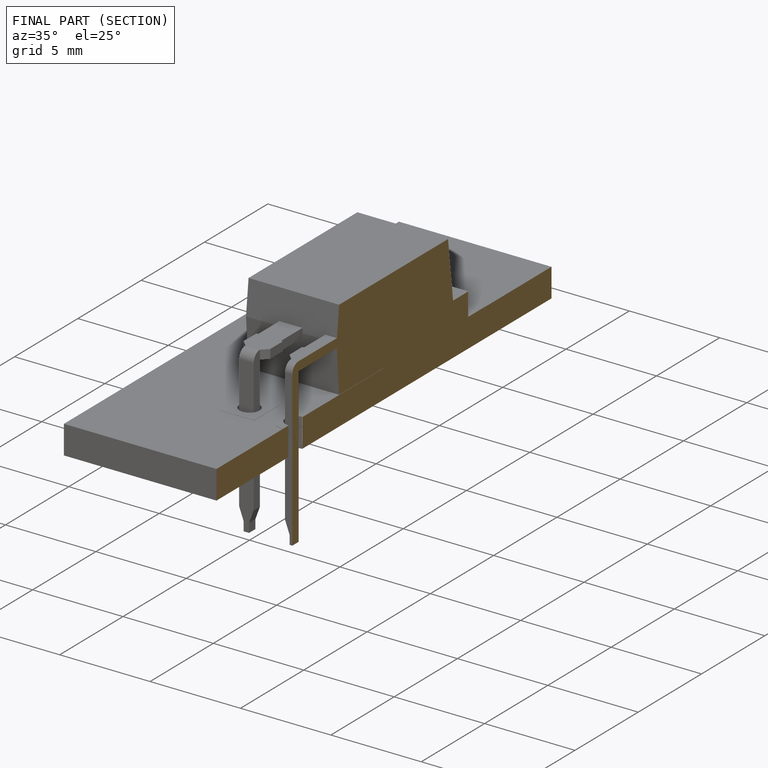
[diagram: finished part — half-section view (interior)]
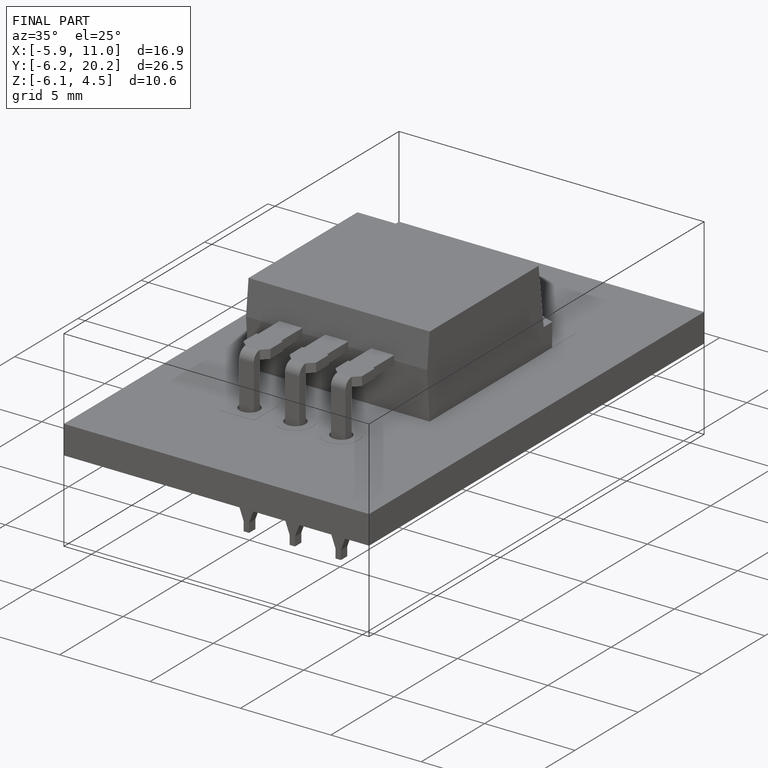
[diagram: finished part — iso view with bounding-box wireframe]
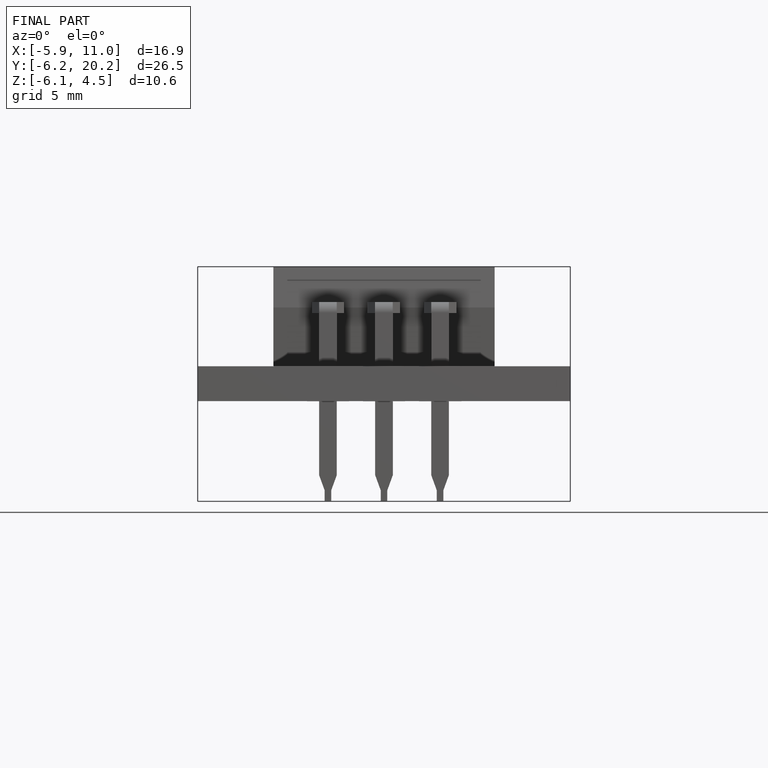
[diagram: finished part — front view with bounding-box wireframe]
